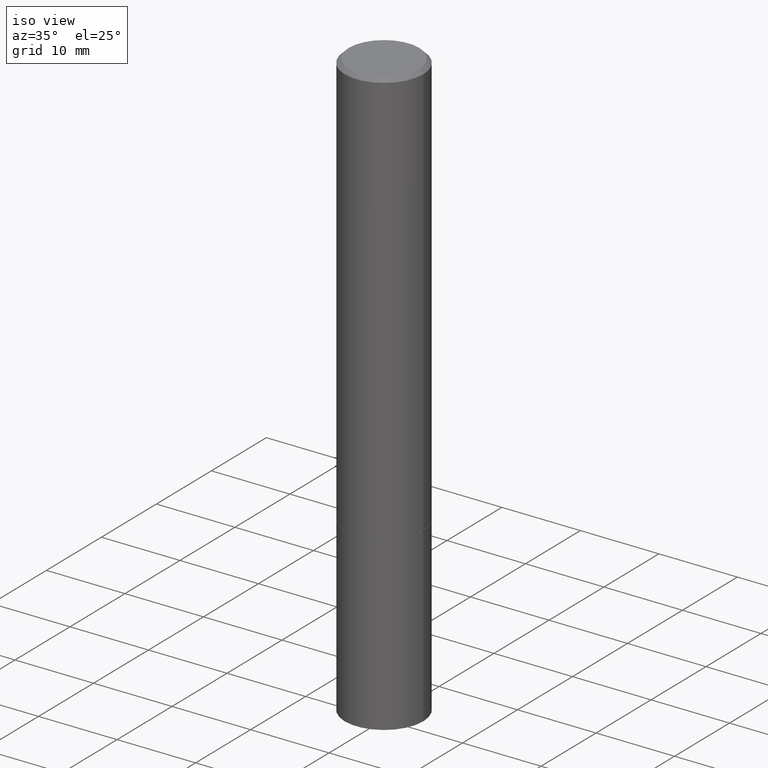
[diagram: clean part render]
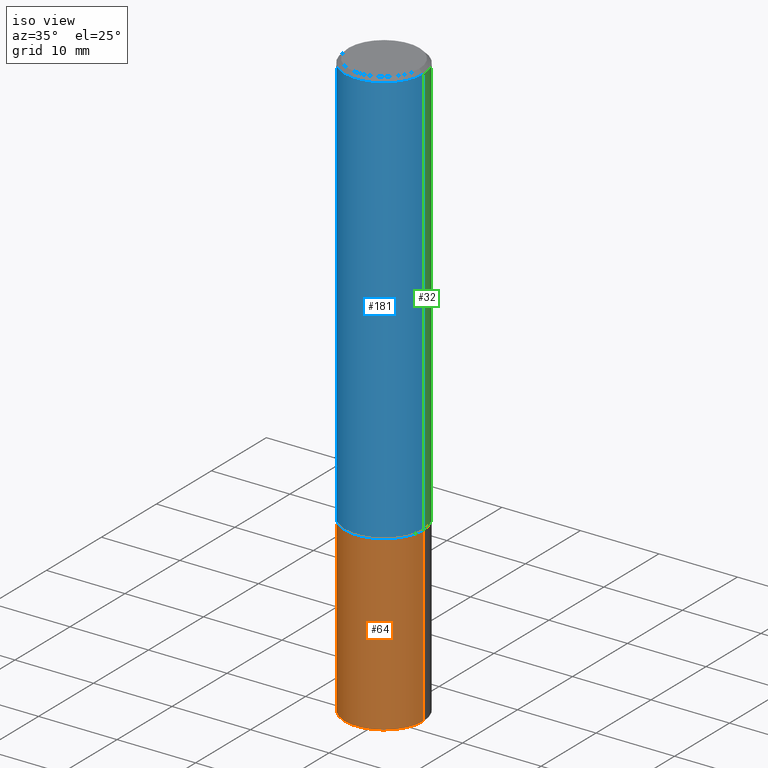
[diagram: same view with three faces highlighted in distinct colors, each labeled with its STEP entity id]
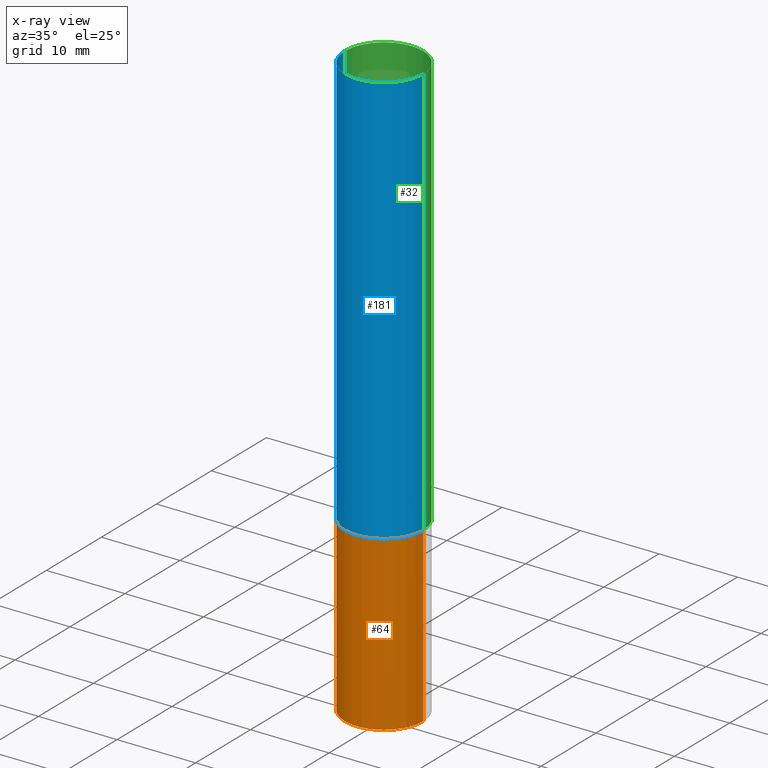
[diagram: x-ray of the same camera — body ghosted, the three highlighted faces saturated]
A machine part, iso view with three faces highlighted in distinct colors.
The next image is the same camera in x-ray (body ghosted, the three faces saturated) — at least one of them is partly hidden behind the body in this view.
Their STEP definitions:

[orange] entity #64 — the highlighted cylindrical surface (partial cylindrical patch) has radius 5 mm, axis along (-0, 0, 1).
#2 = DIRECTION ( 'NONE',  ( -2.445468806185136597E-29, 3.491481338843145583E-15, 1.000000000000000000 ) ) ;
#3 = CIRCLE ( 'NONE', #124, 0.1968500000000000250 ) ;
#6 = EDGE_LOOP ( 'NONE', ( #271, #183, #158, #121 ) ) ;
#7 = DIRECTION ( 'NONE',  ( 1.000000000000000000, -6.982962677686267499E-15, 0.000000000000000000 ) ) ;
#20 = FACE_OUTER_BOUND ( 'NONE', #6, .T. ) ;
#35 = VECTOR ( 'NONE', #89, 39.37007874015748143 ) ;
#56 = CIRCLE ( 'NONE', #180, 0.1968500000000000250 ) ;
#57 = CARTESIAN_POINT ( 'NONE',  ( 7.220980290903470182E-29, -1.030964609733603853E-14, -2.952799999999999869 ) ) ;
#58 = VECTOR ( 'NONE', #160, 39.37007874015748143 ) ;
#64 = ADVANCED_FACE ( 'NONE', ( #20 ), #276, .T. ) ;
#85 = LINE ( 'NONE', #203, #35 ) ;
#87 = CARTESIAN_POINT ( 'NONE',  ( 0.1968500000000000250, -1.168424230043858014E-14, -2.952799999999999869 ) ) ;
#89 = DIRECTION ( 'NONE',  ( -2.445468806185136877E-29, 3.491481338843145188E-15, 1.000000000000000000 ) ) ;
#91 = VERTEX_POINT ( 'NONE', #302 ) ;
#95 = VERTEX_POINT ( 'NONE', #231 ) ;
#109 = AXIS2_PLACEMENT_3D ( 'NONE', #171, #138, #168 ) ;
#121 = ORIENTED_EDGE ( 'NONE', *, *, #196, .F. ) ;
#124 = AXIS2_PLACEMENT_3D ( 'NONE', #184, #260, #7 ) ;
#127 = VERTEX_POINT ( 'NONE', #87 ) ;
#138 = DIRECTION ( 'NONE',  ( -2.445468806185136597E-29, 3.491481338843145583E-15, 1.000000000000000000 ) ) ;
#158 = ORIENTED_EDGE ( 'NONE', *, *, #265, .T. ) ;
#160 = DIRECTION ( 'NONE',  ( -2.445468806185136877E-29, 3.491481338843145188E-15, 1.000000000000000000 ) ) ;
#168 = DIRECTION ( 'NONE',  ( 1.000000000000000000, -6.982962677686265922E-15, 4.876176775795935793E-29 ) ) ;
#171 = CARTESIAN_POINT ( 'NONE',  ( 0.000000000000000000, 0.000000000000000000, 0.000000000000000000 ) ) ;
#180 = AXIS2_PLACEMENT_3D ( 'NONE', #57, #2, #284 ) ;
#182 = CARTESIAN_POINT ( 'NONE',  ( 0.1968500000000000250, -1.374596203102541608E-15, 9.598753983154300858E-30 ) ) ;
#183 = ORIENTED_EDGE ( 'NONE', *, *, #206, .T. ) ;
#184 = CARTESIAN_POINT ( 'NONE',  ( 5.102959757866523939E-29, -7.285674109763990928E-15, -2.086699999999999999 ) ) ;
#196 = EDGE_CURVE ( 'NONE', #91, #95, #3, .T. ) ;
#203 = CARTESIAN_POINT ( 'NONE',  ( -0.1968500000000000250, 1.398703375343757393E-15, -9.682923725166783677E-30 ) ) ;
#206 = EDGE_CURVE ( 'NONE', #263, #127, #56, .T. ) ;
#230 = EDGE_CURVE ( 'NONE', #263, #91, #85, .T. ) ;
#231 = CARTESIAN_POINT ( 'NONE',  ( 0.1968500000000000250, -8.660270312866532536E-15, -2.086699999999999999 ) ) ;
#260 = DIRECTION ( 'NONE',  ( -2.445468806185136597E-29, 3.491481338843145583E-15, 1.000000000000000000 ) ) ;
#263 = VERTEX_POINT ( 'NONE', #314 ) ;
#265 = EDGE_CURVE ( 'NONE', #127, #95, #307, .T. ) ;
#271 = ORIENTED_EDGE ( 'NONE', *, *, #230, .F. ) ;
#276 = CYLINDRICAL_SURFACE ( 'NONE', #109, 0.1968500000000000250 ) ;
#284 = DIRECTION ( 'NONE',  ( 1.000000000000000000, -6.982962677686267499E-15, 0.000000000000000000 ) ) ;
#302 = CARTESIAN_POINT ( 'NONE',  ( -0.1968500000000000250, -7.398956728206258518E-15, -2.086699999999999999 ) ) ;
#307 = LINE ( 'NONE', #182, #58 ) ;
#314 = CARTESIAN_POINT ( 'NONE',  ( -0.1968500000000000250, -7.398956728206258518E-15, -2.952799999999999869 ) ) ;

[blue] entity #181 — the highlighted cylindrical surface (partial cylindrical patch) has radius 5 mm, axis along (-0, 0, 1).
#5 = CARTESIAN_POINT ( 'NONE',  ( 5.100514289060338336E-29, -7.282182628425147921E-15, -2.085699999999999665 ) ) ;
#16 = EDGE_CURVE ( 'NONE', #74, #63, #141, .T. ) ;
#29 = DIRECTION ( 'NONE',  ( -2.445468806185136877E-29, 3.491481338843145188E-15, 1.000000000000000000 ) ) ;
#37 = VERTEX_POINT ( 'NONE', #170 ) ;
#38 = DIRECTION ( 'NONE',  ( -2.445468806185136597E-29, 3.491481338843145583E-15, 1.000000000000000000 ) ) ;
#40 = VECTOR ( 'NONE', #48, 39.37007874015748143 ) ;
#48 = DIRECTION ( 'NONE',  ( -2.445468806185136877E-29, 3.491481338843145188E-15, 1.000000000000000000 ) ) ;
#52 = CYLINDRICAL_SURFACE ( 'NONE', #222, 0.1968499999999999139 ) ;
#54 = FACE_OUTER_BOUND ( 'NONE', #242, .T. ) ;
#63 = VERTEX_POINT ( 'NONE', #134 ) ;
#74 = VERTEX_POINT ( 'NONE', #252 ) ;
#88 = CIRCLE ( 'NONE', #226, 0.1968500000000000250 ) ;
#115 = DIRECTION ( 'NONE',  ( 1.000000000000000000, -6.982962677686267499E-15, 0.000000000000000000 ) ) ;
#125 = VERTEX_POINT ( 'NONE', #234 ) ;
#134 = CARTESIAN_POINT ( 'NONE',  ( -0.1968499999999997752, 1.304766576325677127E-15, -0.02000000000000001776 ) ) ;
#137 = EDGE_CURVE ( 'NONE', #125, #37, #228, .T. ) ;
#141 = LINE ( 'NONE', #201, #40 ) ;
#144 = EDGE_CURVE ( 'NONE', #74, #125, #88, .T. ) ;
#146 = DIRECTION ( 'NONE',  ( -2.445468806185136597E-29, 3.491481338843145583E-15, 1.000000000000000000 ) ) ;
#161 = CARTESIAN_POINT ( 'NONE',  ( 0.1968499999999999139, -1.374596203102541017E-15, 9.598753983154295253E-30 ) ) ;
#163 = DIRECTION ( 'NONE',  ( 1.000000000000000000, -6.982962677686266711E-15, 0.000000000000000000 ) ) ;
#170 = CARTESIAN_POINT ( 'NONE',  ( 0.1968499999999997752, -1.420318657638187347E-15, -0.02000000000000001776 ) ) ;
#181 = ADVANCED_FACE ( 'NONE', ( #54 ), #52, .T. ) ;
#201 = CARTESIAN_POINT ( 'NONE',  ( -0.1968499999999999139, 1.398703375343756604E-15, -9.682923725166778072E-30 ) ) ;
#222 = AXIS2_PLACEMENT_3D ( 'NONE', #259, #38, #255 ) ;
#226 = AXIS2_PLACEMENT_3D ( 'NONE', #5, #146, #115 ) ;
#228 = LINE ( 'NONE', #161, #251 ) ;
#234 = CARTESIAN_POINT ( 'NONE',  ( 0.1968500000000000250, -8.656778831527691107E-15, -2.085699999999999665 ) ) ;
#239 = ORIENTED_EDGE ( 'NONE', *, *, #144, .T. ) ;
#242 = EDGE_LOOP ( 'NONE', ( #333, #239, #243, #344 ) ) ;
#243 = ORIENTED_EDGE ( 'NONE', *, *, #137, .T. ) ;
#248 = CARTESIAN_POINT ( 'NONE',  ( 4.890937612370276662E-31, -6.982962677686296539E-17, -0.02000000000000001776 ) ) ;
#250 = DIRECTION ( 'NONE',  ( -2.445468806185136597E-29, 3.491481338843145583E-15, 1.000000000000000000 ) ) ;
#251 = VECTOR ( 'NONE', #29, 39.37007874015748143 ) ;
#252 = CARTESIAN_POINT ( 'NONE',  ( -0.1968500000000000250, -2.277302752257247033E-15, -2.085699999999999665 ) ) ;
#255 = DIRECTION ( 'NONE',  ( 1.000000000000000000, -6.982962677686266711E-15, 4.876176775795935793E-29 ) ) ;
#259 = CARTESIAN_POINT ( 'NONE',  ( 0.000000000000000000, 0.000000000000000000, 0.000000000000000000 ) ) ;
#261 = AXIS2_PLACEMENT_3D ( 'NONE', #248, #250, #163 ) ;
#293 = CIRCLE ( 'NONE', #261, 0.1968499999999997752 ) ;
#333 = ORIENTED_EDGE ( 'NONE', *, *, #16, .F. ) ;
#343 = EDGE_CURVE ( 'NONE', #63, #37, #293, .T. ) ;
#344 = ORIENTED_EDGE ( 'NONE', *, *, #343, .F. ) ;

[green] entity #32 — the highlighted cylindrical surface (partial cylindrical patch) has radius 5 mm, axis along (-0, 0, 1).
#16 = EDGE_CURVE ( 'NONE', #74, #63, #141, .T. ) ;
#19 = DIRECTION ( 'NONE',  ( 1.000000000000000000, -6.982962677686267499E-15, 0.000000000000000000 ) ) ;
#28 = CIRCLE ( 'NONE', #277, 0.1968499999999997752 ) ;
#29 = DIRECTION ( 'NONE',  ( -2.445468806185136877E-29, 3.491481338843145188E-15, 1.000000000000000000 ) ) ;
#32 = ADVANCED_FACE ( 'NONE', ( #198 ), #107, .T. ) ;
#37 = VERTEX_POINT ( 'NONE', #170 ) ;
#40 = VECTOR ( 'NONE', #48, 39.37007874015748143 ) ;
#45 = CARTESIAN_POINT ( 'NONE',  ( 5.100514289060338336E-29, -7.282182628425147921E-15, -2.085699999999999665 ) ) ;
#48 = DIRECTION ( 'NONE',  ( -2.445468806185136877E-29, 3.491481338843145188E-15, 1.000000000000000000 ) ) ;
#63 = VERTEX_POINT ( 'NONE', #134 ) ;
#66 = AXIS2_PLACEMENT_3D ( 'NONE', #132, #254, #362 ) ;
#74 = VERTEX_POINT ( 'NONE', #252 ) ;
#107 = CYLINDRICAL_SURFACE ( 'NONE', #66, 0.1968499999999999139 ) ;
#123 = EDGE_CURVE ( 'NONE', #37, #63, #28, .T. ) ;
#125 = VERTEX_POINT ( 'NONE', #234 ) ;
#132 = CARTESIAN_POINT ( 'NONE',  ( 0.000000000000000000, 0.000000000000000000, 0.000000000000000000 ) ) ;
#134 = CARTESIAN_POINT ( 'NONE',  ( -0.1968499999999997752, 1.304766576325677127E-15, -0.02000000000000001776 ) ) ;
#137 = EDGE_CURVE ( 'NONE', #125, #37, #228, .T. ) ;
#141 = LINE ( 'NONE', #201, #40 ) ;
#161 = CARTESIAN_POINT ( 'NONE',  ( 0.1968499999999999139, -1.374596203102541017E-15, 9.598753983154295253E-30 ) ) ;
#166 = AXIS2_PLACEMENT_3D ( 'NONE', #45, #191, #19 ) ;
#170 = CARTESIAN_POINT ( 'NONE',  ( 0.1968499999999997752, -1.420318657638187347E-15, -0.02000000000000001776 ) ) ;
#185 = ORIENTED_EDGE ( 'NONE', *, *, #123, .F. ) ;
#191 = DIRECTION ( 'NONE',  ( -2.445468806185136597E-29, 3.491481338843145583E-15, 1.000000000000000000 ) ) ;
#198 = FACE_OUTER_BOUND ( 'NONE', #298, .T. ) ;
#201 = CARTESIAN_POINT ( 'NONE',  ( -0.1968499999999999139, 1.398703375343756604E-15, -9.682923725166778072E-30 ) ) ;
#205 = CARTESIAN_POINT ( 'NONE',  ( 4.890937612370276662E-31, -6.982962677686296539E-17, -0.02000000000000001776 ) ) ;
#212 = DIRECTION ( 'NONE',  ( -2.445468806185136597E-29, 3.491481338843145583E-15, 1.000000000000000000 ) ) ;
#228 = LINE ( 'NONE', #161, #251 ) ;
#234 = CARTESIAN_POINT ( 'NONE',  ( 0.1968500000000000250, -8.656778831527691107E-15, -2.085699999999999665 ) ) ;
#251 = VECTOR ( 'NONE', #29, 39.37007874015748143 ) ;
#252 = CARTESIAN_POINT ( 'NONE',  ( -0.1968500000000000250, -2.277302752257247033E-15, -2.085699999999999665 ) ) ;
#254 = DIRECTION ( 'NONE',  ( -2.445468806185136597E-29, 3.491481338843145583E-15, 1.000000000000000000 ) ) ;
#269 = ORIENTED_EDGE ( 'NONE', *, *, #16, .T. ) ;
#277 = AXIS2_PLACEMENT_3D ( 'NONE', #205, #212, #309 ) ;
#291 = ORIENTED_EDGE ( 'NONE', *, *, #306, .T. ) ;
#298 = EDGE_LOOP ( 'NONE', ( #291, #269, #185, #324 ) ) ;
#306 = EDGE_CURVE ( 'NONE', #125, #74, #313, .T. ) ;
#309 = DIRECTION ( 'NONE',  ( 1.000000000000000000, -6.982962677686266711E-15, 0.000000000000000000 ) ) ;
#313 = CIRCLE ( 'NONE', #166, 0.1968500000000000250 ) ;
#324 = ORIENTED_EDGE ( 'NONE', *, *, #137, .F. ) ;
#362 = DIRECTION ( 'NONE',  ( 1.000000000000000000, -6.982962677686266711E-15, 4.876176775795935793E-29 ) ) ;